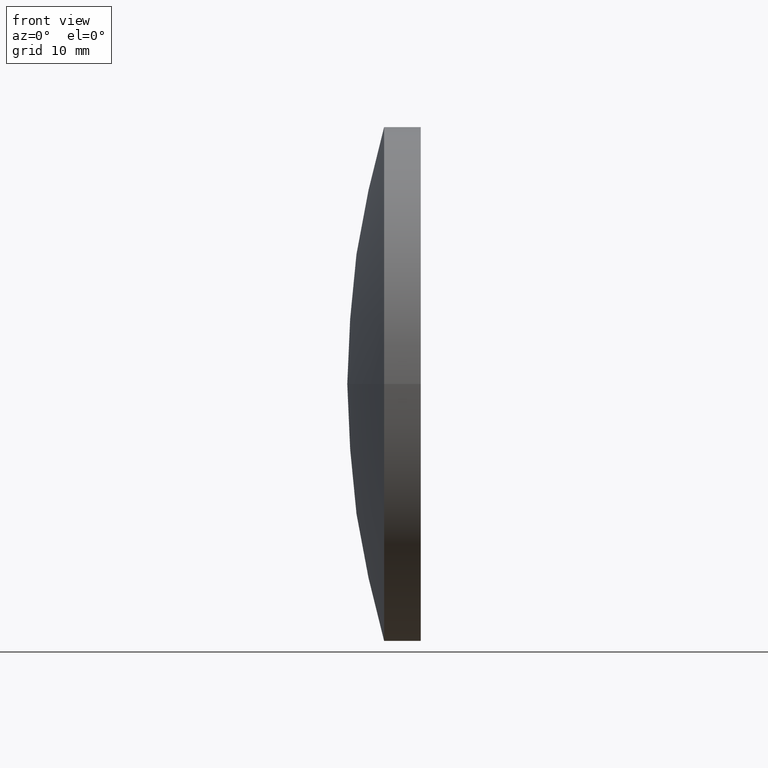
[diagram: clean part render]
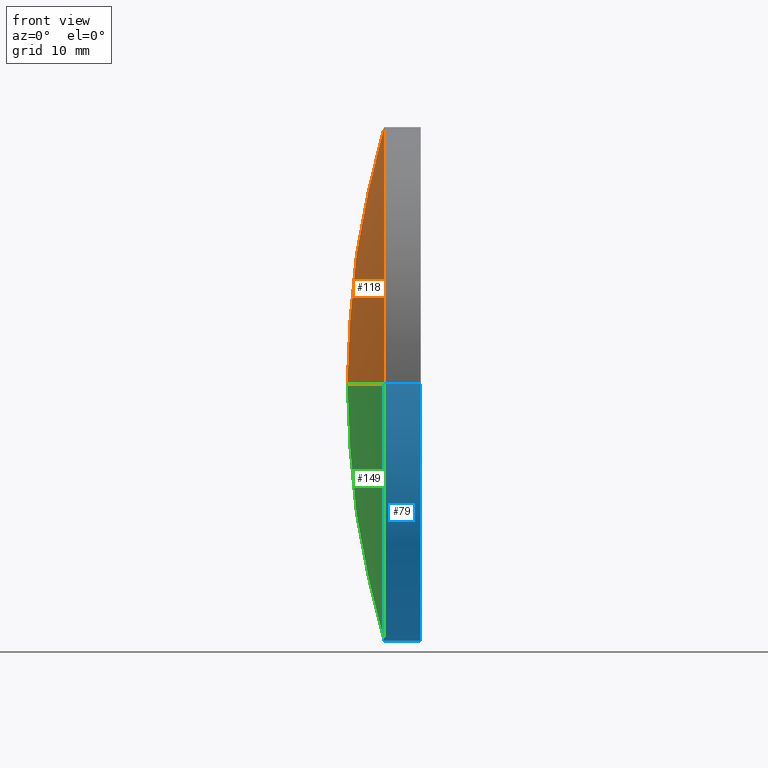
[diagram: same view with three faces highlighted in distinct colors, each labeled with its STEP entity id]
A machine part, front view with three faces highlighted in distinct colors.
Their STEP definitions:

[orange] entity #118 — the highlighted spherical surface has radius 89.2 mm.
#1 = EDGE_CURVE ( 'NONE', #116, #78, #148, .T. ) ;
#8 = CARTESIAN_POINT ( 'NONE',  ( 334.4821311214901700, 130.4336809418806800, 0.0000000000000000000 ) ) ;
#11 = DIRECTION ( 'NONE',  ( 0.0000000000000000000, 1.000000000000000000, 1.224646799147353200E-016 ) ) ;
#17 = CIRCLE ( 'NONE', #75, 89.20000000000000300 ) ;
#29 = DIRECTION ( 'NONE',  ( -0.0000000000000000000, 0.0000000000000000000, 1.000000000000000000 ) ) ;
#35 = CARTESIAN_POINT ( 'NONE',  ( 248.8571347711253200, 130.4336809418806500, 0.0000000000000000000 ) ) ;
#39 = DIRECTION ( 'NONE',  ( -0.0000000000000000000, 0.0000000000000000000, -1.000000000000000000 ) ) ;
#46 = EDGE_CURVE ( 'NONE', #165, #78, #17, .T. ) ;
#53 = CARTESIAN_POINT ( 'NONE',  ( 334.4821311214901700, 130.4336809418806800, 0.0000000000000000000 ) ) ;
#59 = ORIENTED_EDGE ( 'NONE', *, *, #1, .F. ) ;
#65 = AXIS2_PLACEMENT_3D ( 'NONE', #8, #184, #11 ) ;
#66 = CIRCLE ( 'NONE', #89, 25.00000000000000700 ) ;
#75 = AXIS2_PLACEMENT_3D ( 'NONE', #188, #29, #111 ) ;
#78 = VERTEX_POINT ( 'NONE', #112 ) ;
#83 = AXIS2_PLACEMENT_3D ( 'NONE', #53, #39, #103 ) ;
#85 = DIRECTION ( 'NONE',  ( 1.110223024625156100E-015, -1.000000000000000000, 0.0000000000000000000 ) ) ;
#87 = DIRECTION ( 'NONE',  ( -1.000000000000000000, -6.937607244762875000E-016, -0.0000000000000000000 ) ) ;
#89 = AXIS2_PLACEMENT_3D ( 'NONE', #35, #87, #85 ) ;
#103 = DIRECTION ( 'NONE',  ( -6.223223232203792000E-016, 1.000000000000000000, 0.0000000000000000000 ) ) ;
#104 = EDGE_LOOP ( 'NONE', ( #59, #160, #153 ) ) ;
#105 = FACE_OUTER_BOUND ( 'NONE', #104, .T. ) ;
#111 = DIRECTION ( 'NONE',  ( 1.000000000000000000, 0.0000000000000000000, 0.0000000000000000000 ) ) ;
#112 = CARTESIAN_POINT ( 'NONE',  ( 245.2821311214901500, 130.4336809418806200, 0.0000000000000000000 ) ) ;
#116 = VERTEX_POINT ( 'NONE', #192 ) ;
#118 = ADVANCED_FACE ( 'NONE', ( #105 ), #138, .T. ) ;
#120 = EDGE_CURVE ( 'NONE', #116, #165, #66, .T. ) ;
#137 = CARTESIAN_POINT ( 'NONE',  ( 248.8571347711252600, 155.4336809418806500, 0.0000000000000000000 ) ) ;
#138 = SPHERICAL_SURFACE ( 'NONE', #83, 89.20000000000000300 ) ;
#148 = CIRCLE ( 'NONE', #65, 89.20000000000000300 ) ;
#153 = ORIENTED_EDGE ( 'NONE', *, *, #46, .T. ) ;
#160 = ORIENTED_EDGE ( 'NONE', *, *, #120, .T. ) ;
#165 = VERTEX_POINT ( 'NONE', #137 ) ;
#184 = DIRECTION ( 'NONE',  ( -8.496118506040342700E-032, 1.224646799147353200E-016, -1.000000000000000000 ) ) ;
#188 = CARTESIAN_POINT ( 'NONE',  ( 334.4821311214901700, 130.4336809418806800, 0.0000000000000000000 ) ) ;
#192 = CARTESIAN_POINT ( 'NONE',  ( 248.8571347711253200, 105.4336809418806200, -3.061616997868384200E-015 ) ) ;

[blue] entity #79 — the highlighted cylindrical surface (partial cylindrical patch) has radius 25 mm, axis along (-1, -0, -0).
#18 = AXIS2_PLACEMENT_3D ( 'NONE', #113, #158, #129 ) ;
#19 = VERTEX_POINT ( 'NONE', #141 ) ;
#23 = ORIENTED_EDGE ( 'NONE', *, *, #41, .F. ) ;
#27 = DIRECTION ( 'NONE',  ( 0.0000000000000000000, -1.000000000000000000, 0.0000000000000000000 ) ) ;
#28 = CARTESIAN_POINT ( 'NONE',  ( 252.4100194422366900, 130.4336809418806800, 0.0000000000000000000 ) ) ;
#34 = CARTESIAN_POINT ( 'NONE',  ( 231.8889825959263100, 155.4336809418806200, 3.061616997868379100E-015 ) ) ;
#40 = CARTESIAN_POINT ( 'NONE',  ( 252.4100194422367500, 105.4336809418806500, -3.061616997868356600E-015 ) ) ;
#41 = EDGE_CURVE ( 'NONE', #165, #116, #181, .T. ) ;
#45 = CYLINDRICAL_SURFACE ( 'NONE', #18, 24.99999999999996800 ) ;
#55 = ORIENTED_EDGE ( 'NONE', *, *, #68, .F. ) ;
#63 = LINE ( 'NONE', #34, #183 ) ;
#64 = EDGE_LOOP ( 'NONE', ( #55, #132, #86, #23 ) ) ;
#68 = EDGE_CURVE ( 'NONE', #19, #165, #63, .T. ) ;
#69 = CARTESIAN_POINT ( 'NONE',  ( 248.8571347711253200, 130.4336809418806500, 0.0000000000000000000 ) ) ;
#70 = CIRCLE ( 'NONE', #80, 24.99999999999992500 ) ;
#79 = ADVANCED_FACE ( 'NONE', ( #107 ), #45, .T. ) ;
#80 = AXIS2_PLACEMENT_3D ( 'NONE', #28, #163, #27 ) ;
#81 = DIRECTION ( 'NONE',  ( -1.000000000000000000, -6.937607244762875000E-016, -0.0000000000000000000 ) ) ;
#86 = ORIENTED_EDGE ( 'NONE', *, *, #142, .T. ) ;
#90 = EDGE_CURVE ( 'NONE', #19, #168, #70, .T. ) ;
#95 = VECTOR ( 'NONE', #147, 1000.000000000000000 ) ;
#107 = FACE_OUTER_BOUND ( 'NONE', #64, .T. ) ;
#113 = CARTESIAN_POINT ( 'NONE',  ( 231.8889825959263400, 130.4336809418806500, 0.0000000000000000000 ) ) ;
#116 = VERTEX_POINT ( 'NONE', #192 ) ;
#129 = DIRECTION ( 'NONE',  ( 1.110223024625157900E-015, -1.000000000000000000, 0.0000000000000000000 ) ) ;
#132 = ORIENTED_EDGE ( 'NONE', *, *, #90, .T. ) ;
#137 = CARTESIAN_POINT ( 'NONE',  ( 248.8571347711252600, 155.4336809418806500, 0.0000000000000000000 ) ) ;
#141 = CARTESIAN_POINT ( 'NONE',  ( 252.4100194422366900, 155.4336809418804500, 0.0000000000000000000 ) ) ;
#142 = EDGE_CURVE ( 'NONE', #168, #116, #151, .T. ) ;
#147 = DIRECTION ( 'NONE',  ( -1.000000000000000000, -6.937607244762875000E-016, -0.0000000000000000000 ) ) ;
#151 = LINE ( 'NONE', #173, #95 ) ;
#157 = AXIS2_PLACEMENT_3D ( 'NONE', #69, #174, #190 ) ;
#158 = DIRECTION ( 'NONE',  ( -1.000000000000000000, -6.937607244762875000E-016, -0.0000000000000000000 ) ) ;
#163 = DIRECTION ( 'NONE',  ( -1.000000000000000000, -6.937607244762875000E-016, -0.0000000000000000000 ) ) ;
#165 = VERTEX_POINT ( 'NONE', #137 ) ;
#168 = VERTEX_POINT ( 'NONE', #40 ) ;
#173 = CARTESIAN_POINT ( 'NONE',  ( 231.8889825959263600, 105.4336809418806800, 0.0000000000000000000 ) ) ;
#174 = DIRECTION ( 'NONE',  ( -1.000000000000000000, -6.937607244762875000E-016, -0.0000000000000000000 ) ) ;
#181 = CIRCLE ( 'NONE', #157, 25.00000000000000700 ) ;
#183 = VECTOR ( 'NONE', #81, 1000.000000000000000 ) ;
#190 = DIRECTION ( 'NONE',  ( 1.110223024625156100E-015, -1.000000000000000000, 0.0000000000000000000 ) ) ;
#192 = CARTESIAN_POINT ( 'NONE',  ( 248.8571347711253200, 105.4336809418806200, -3.061616997868384200E-015 ) ) ;

[green] entity #149 — the highlighted spherical surface has radius 89.2 mm.
#1 = EDGE_CURVE ( 'NONE', #116, #78, #148, .T. ) ;
#2 = EDGE_LOOP ( 'NONE', ( #47, #9, #128 ) ) ;
#8 = CARTESIAN_POINT ( 'NONE',  ( 334.4821311214901700, 130.4336809418806800, 0.0000000000000000000 ) ) ;
#9 = ORIENTED_EDGE ( 'NONE', *, *, #1, .T. ) ;
#11 = DIRECTION ( 'NONE',  ( 0.0000000000000000000, 1.000000000000000000, 1.224646799147353200E-016 ) ) ;
#17 = CIRCLE ( 'NONE', #75, 89.20000000000000300 ) ;
#29 = DIRECTION ( 'NONE',  ( -0.0000000000000000000, 0.0000000000000000000, 1.000000000000000000 ) ) ;
#36 = SPHERICAL_SURFACE ( 'NONE', #48, 89.20000000000000300 ) ;
#41 = EDGE_CURVE ( 'NONE', #165, #116, #181, .T. ) ;
#46 = EDGE_CURVE ( 'NONE', #165, #78, #17, .T. ) ;
#47 = ORIENTED_EDGE ( 'NONE', *, *, #41, .T. ) ;
#48 = AXIS2_PLACEMENT_3D ( 'NONE', #187, #52, #161 ) ;
#52 = DIRECTION ( 'NONE',  ( -0.0000000000000000000, 0.0000000000000000000, -1.000000000000000000 ) ) ;
#65 = AXIS2_PLACEMENT_3D ( 'NONE', #8, #184, #11 ) ;
#69 = CARTESIAN_POINT ( 'NONE',  ( 248.8571347711253200, 130.4336809418806500, 0.0000000000000000000 ) ) ;
#75 = AXIS2_PLACEMENT_3D ( 'NONE', #188, #29, #111 ) ;
#76 = FACE_OUTER_BOUND ( 'NONE', #2, .T. ) ;
#78 = VERTEX_POINT ( 'NONE', #112 ) ;
#111 = DIRECTION ( 'NONE',  ( 1.000000000000000000, 0.0000000000000000000, 0.0000000000000000000 ) ) ;
#112 = CARTESIAN_POINT ( 'NONE',  ( 245.2821311214901500, 130.4336809418806200, 0.0000000000000000000 ) ) ;
#116 = VERTEX_POINT ( 'NONE', #192 ) ;
#128 = ORIENTED_EDGE ( 'NONE', *, *, #46, .F. ) ;
#137 = CARTESIAN_POINT ( 'NONE',  ( 248.8571347711252600, 155.4336809418806500, 0.0000000000000000000 ) ) ;
#148 = CIRCLE ( 'NONE', #65, 89.20000000000000300 ) ;
#149 = ADVANCED_FACE ( 'NONE', ( #76 ), #36, .T. ) ;
#157 = AXIS2_PLACEMENT_3D ( 'NONE', #69, #174, #190 ) ;
#161 = DIRECTION ( 'NONE',  ( -6.223223232203792000E-016, 1.000000000000000000, 0.0000000000000000000 ) ) ;
#165 = VERTEX_POINT ( 'NONE', #137 ) ;
#174 = DIRECTION ( 'NONE',  ( -1.000000000000000000, -6.937607244762875000E-016, -0.0000000000000000000 ) ) ;
#181 = CIRCLE ( 'NONE', #157, 25.00000000000000700 ) ;
#184 = DIRECTION ( 'NONE',  ( -8.496118506040342700E-032, 1.224646799147353200E-016, -1.000000000000000000 ) ) ;
#187 = CARTESIAN_POINT ( 'NONE',  ( 334.4821311214901700, 130.4336809418806800, 0.0000000000000000000 ) ) ;
#188 = CARTESIAN_POINT ( 'NONE',  ( 334.4821311214901700, 130.4336809418806800, 0.0000000000000000000 ) ) ;
#190 = DIRECTION ( 'NONE',  ( 1.110223024625156100E-015, -1.000000000000000000, 0.0000000000000000000 ) ) ;
#192 = CARTESIAN_POINT ( 'NONE',  ( 248.8571347711253200, 105.4336809418806200, -3.061616997868384200E-015 ) ) ;